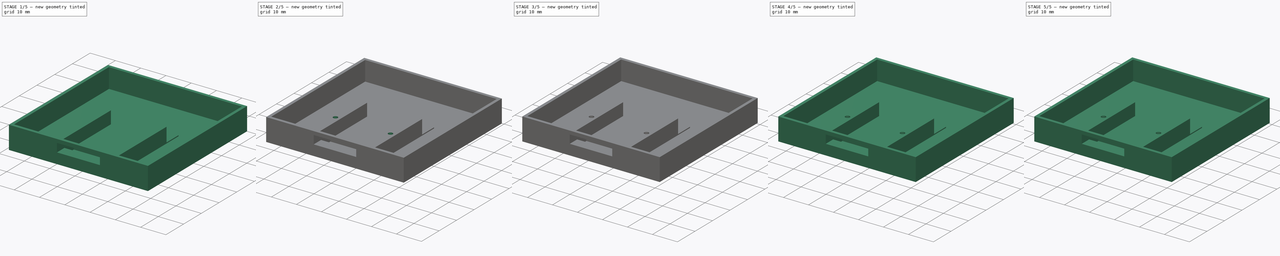
[diagram: build sequence overview — one tinted view per stage of 5, left to right]
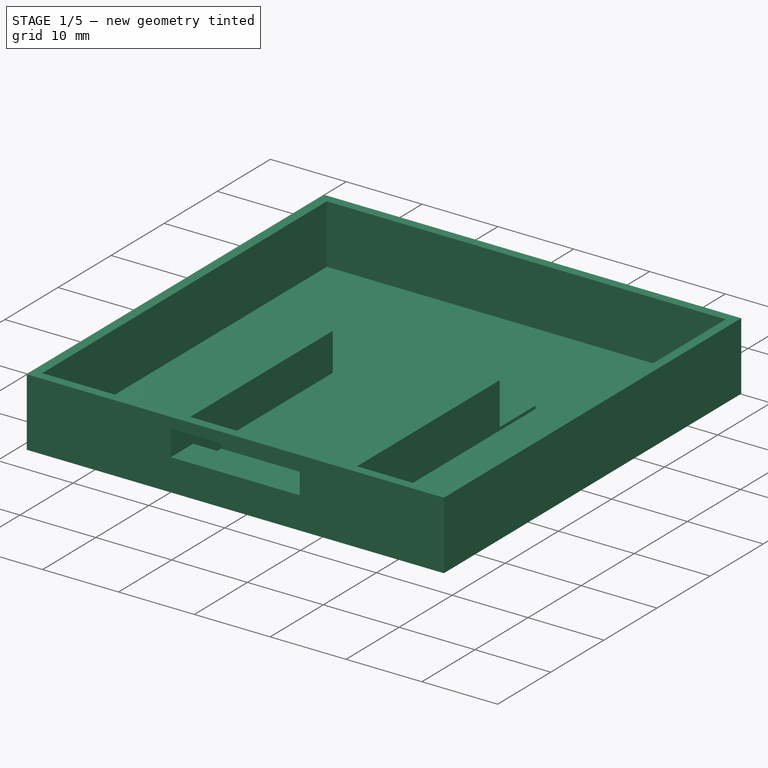
[diagram: stage 1 of 5 — iso view after this stage's code; geometry added in this stage tinted green]
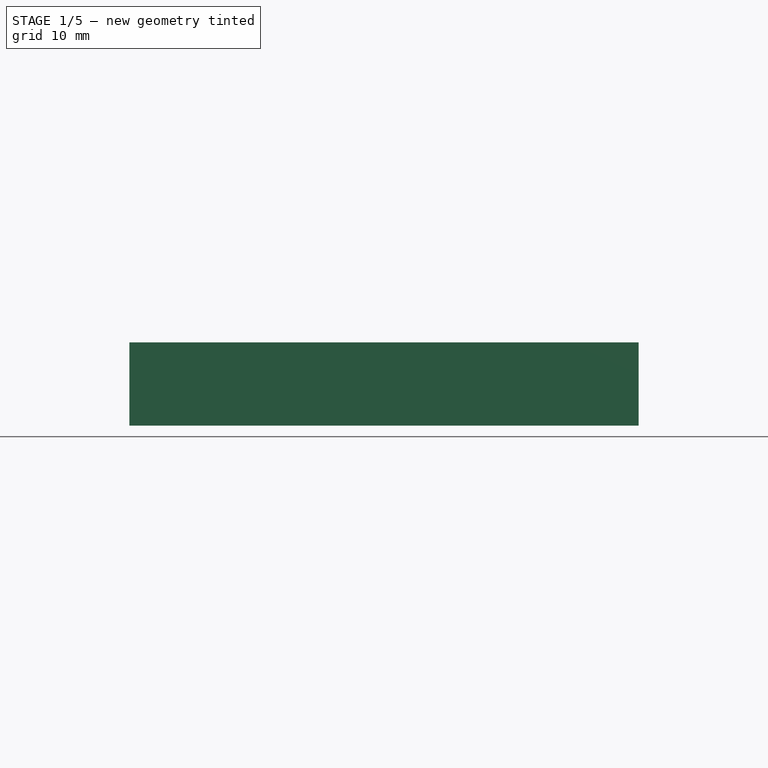
[diagram: stage 1 of 5 — front view after this stage's code; geometry added in this stage tinted green]
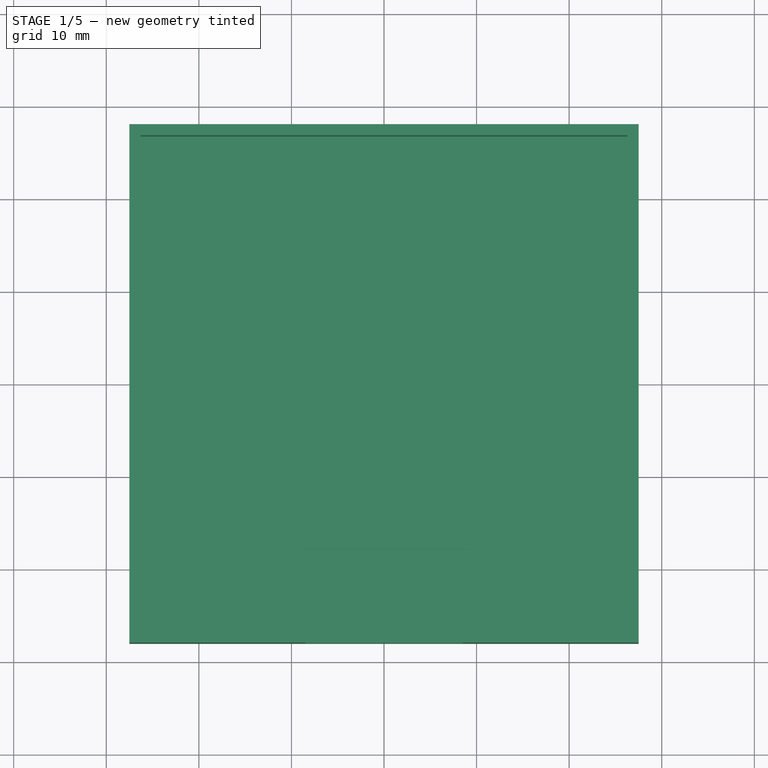
[diagram: stage 1 of 5 — top view after this stage's code; geometry added in this stage tinted green]
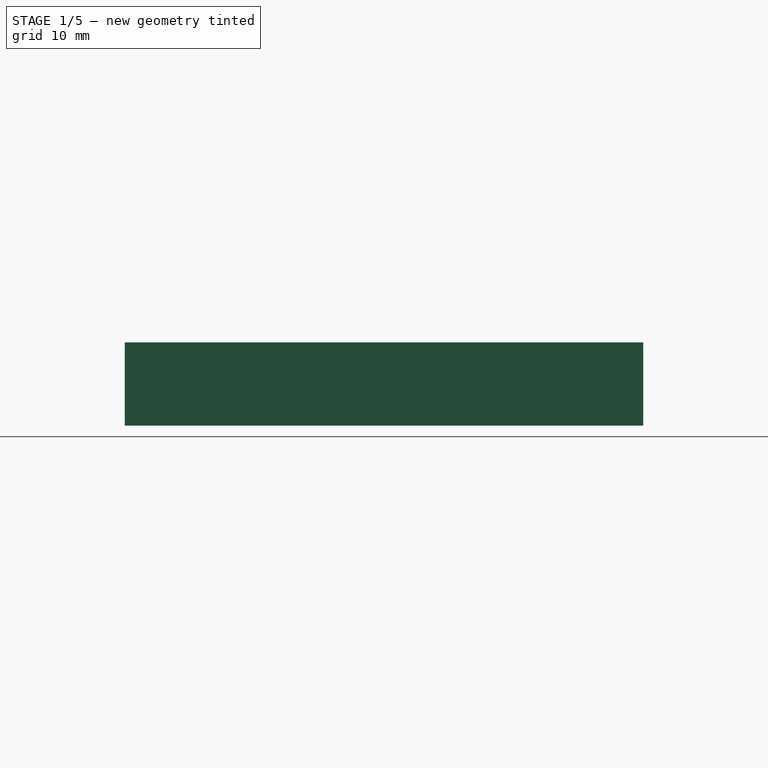
[diagram: stage 1 of 5 — right view after this stage's code; geometry added in this stage tinted green]
FCSTD DOCUMENT  (FreeCAD 0.20R29603 (Git))
Label: Bluetooth_Holder
License: All rights reserved
LicenseURL: http://en.wikipedia.org/wiki/All_rights_reserved
objects: Sketcher::SketchObject×16, PartDesign::Fillet×16, PartDesign::Pad×11, PartDesign::Body×6, Spreadsheet::Sheet×5, PartDesign::Plane×5, PartDesign::Pocket×5, PartDesign::LinearPattern×4
note: 95 computed .brp shape members not serialized (recipe doc carries the construction recipe); baked Part::Feature solids carry a one-line shape summary decoded from their .brp

FEATURE [PartDesign::Body] Body004  label="Tab4"
  Group = -> [Sketch010,Pad008,DatumPlane005,Sketch011,Pad009,LinearPattern003,Fillet012,Fillet013,Fillet014,Fillet015]
  Origin = -> Origin012
  Placement = pos=(-22.4,-32.5,7.4) rot=(0,0,-1;1.5708rad)
  Tip = -> Fillet015
FEATURE [Spreadsheet::Sheet] Spreadsheet004  label="Params004"
  cells = A1=tab_insertion; B1(tab_insertion)=1; A2=tab_width; B2(tab_width)=10; A3=tab_length; B3(tab_length)=9; A4=tab_height; B4(tab_height)=5.6; A5=tab_thickness; B5(tab_thickness)=1.6; A6=tab_rib_length; B6(tab_rib_length)==B3 - 4; A7=tab_rib_height; B7(tab_rib_height)==B4 - B8; A8=tab_rib_thickness; B8(tab_rib_thickness)=1.6; A9=tab_hole_x; B9(tab_hole_x)==B3 / 2; A10=tab_hole_y; B10(tab_hole_y)=0; A11=tab_hole_diameter; B11(tab_hole_diameter)=2.5; A12=tab_rib_insert; B12(tab_rib_insert)==2 * B1; A13=tab_ribs_gap; B13(tab_ribs_gap)==B2 - B8
FEATURE [PartDesign::Pad] Pad  label="Corpo"
  Direction = (0,0,1)
  Length = 9
  Length2 = 10
  Profile = -> Sketch
  ReferenceAxis = -> Sketch [N_Axis]
  Type = 0
  expr: Length = <<Params>>.box_height
FEATURE [Sketcher::SketchObject] Sketch012
  FullyConstrained = true
  MapMode = 5
  Placement = pos=(0,0,9) rot=(0,0,1;0rad)
  Support = -> [Pad]
  expr: Constraints[8] = <<Params>>.box_length_internal
  expr: Constraints[9] = <<Params>>.box_width_internal
  sketch-geometry (4):
    g0: LineSegment StartX=-26.3 StartY=26.8 StartZ=0 EndX=-26.3 EndY=-26.8 EndZ=0
    g1: LineSegment StartX=-26.3 StartY=-26.8 StartZ=0 EndX=26.3 EndY=-26.8 EndZ=0
    g2: LineSegment StartX=26.3 StartY=-26.8 StartZ=0 EndX=26.3 EndY=26.8 EndZ=0
    g3: LineSegment StartX=26.3 StartY=26.8 StartZ=0 EndX=-26.3 EndY=26.8 EndZ=0
  constraints (10):
    c: Coincident(g1,g0)
    c: Horizontal(g1)
    c: Coincident(g2,g1)
    c: Vertical(g2)
    c: Coincident(g3,g2)
    c: Coincident(g3,g0)
    c: Symmetric(g0,g2,g-2)
    c: Symmetric(g0,g0,g-1)
    c: DistanceX(g0,g2) = 52.6
    c: DistanceY(g0,g0) = 53.6
FEATURE [PartDesign::Pocket] Pocket
  BaseFeature = -> Pad
  Direction = (0,0,-1)
  Length = 7.8
  Length2 = 5
  Profile = -> Sketch012
  ReferenceAxis = -> Sketch012 [N_Axis]
  Type = 0
  expr: Length = <<Params>>.box_depth
FEATURE [Sketcher::SketchObject] Sketch013
  ExternalGeometry = -> [Pocket]
  FullyConstrained = true
  MapMode = 5
  Placement = pos=(0,0,1.2) rot=(0,0,1;0rad)
  Support = -> [Pocket]
  sketch-geometry (4):
    g0: LineSegment StartX=-13 StartY=3.2 StartZ=0 EndX=13 EndY=3.2 EndZ=0
    g1: LineSegment StartX=13 StartY=3.2 StartZ=0 EndX=13 EndY=-26.8 EndZ=0
    g2: LineSegment StartX=13 StartY=-26.8 StartZ=0 EndX=-13 EndY=-26.8 EndZ=0
    g3: LineSegment StartX=-13 StartY=-26.8 StartZ=0 EndX=-13 EndY=3.2 EndZ=0
  constraints (11):
    c: Coincident(g0,g1)
    c: Coincident(g1,g2)
    c: Coincident(g2,g3)
    c: Coincident(g3,g0)
    c: Horizontal(g2)
    c: Vertical(g1)
    c: Vertical(g3)
    c: DistanceX(g2,g1) = 26
    c: DistanceY(g2,g0) = 30
    c: DistanceY(g1,g-3) = 0
    c: Symmetric(g0,g0,g-2)
FEATURE [PartDesign::Pad] Pad010
  BaseFeature = -> Pocket
  Direction = (0,0,1)
  Length = 6
  Length2 = 10
  Profile = -> Sketch013
  ReferenceAxis = -> Sketch013 [N_Axis]
  Type = 0
FEATURE [Sketcher::SketchObject] Sketch014
  ExternalGeometry = -> [Pad010]
  FullyConstrained = true
  MapMode = 5
  Placement = pos=(0,0,7.2) rot=(0,0,1;0rad)
  Support = -> [Pad010]
  sketch-geometry (4):
    g0: LineSegment StartX=-9 StartY=-17.8 StartZ=0 EndX=9 EndY=-17.8 EndZ=0
    g1: LineSegment StartX=9 StartY=-17.8 StartZ=0 EndX=9 EndY=-23.8 EndZ=0
    g2: LineSegment StartX=9 StartY=-23.8 StartZ=0 EndX=-9 EndY=-23.8 EndZ=0
    g3: LineSegment StartX=-9 StartY=-23.8 StartZ=0 EndX=-9 EndY=-17.8 EndZ=0
  constraints (11):
    c: Coincident(g0,g1)
    c: Coincident(g1,g2)
    c: Coincident(g2,g3)
    c: Coincident(g3,g0)
    c: Horizontal(g2)
    c: Vertical(g1)
    c: Vertical(g3)
    c: Symmetric(g0,g0,g-2)
    c: DistanceY(g-3,g1) = 3
    c: DistanceX(g0,g0) = 18
    c: DistanceY(g1,g0) = 6
FEATURE [PartDesign::Pocket] Pocket001
  BaseFeature = -> Pad010
  Direction = (0,0,-1)
  Length = 6
  Length2 = 5
  Profile = -> Sketch014
  ReferenceAxis = -> Sketch014 [N_Axis]
  Type = 0
FEATURE [Sketcher::SketchObject] Sketch015
  ExternalGeometry = -> [Pocket001]
  FullyConstrained = true
  MapMode = 5
  Placement = pos=(0,0,7.2) rot=(0,0,1;0rad)
  Support = -> [Pocket001]
  sketch-geometry (4):
    g0: LineSegment StartX=-9 StartY=-17.8 StartZ=0 EndX=9 EndY=-17.8 EndZ=0
    g1: LineSegment StartX=9 StartY=-17.8 StartZ=0 EndX=9 EndY=4.2 EndZ=0
    g2: LineSegment StartX=9 StartY=4.2 StartZ=0 EndX=-9 EndY=4.2 EndZ=0
    g3: LineSegment StartX=-9 StartY=4.2 StartZ=0 EndX=-9 EndY=-17.8 EndZ=0
  constraints (10):
    c: Coincident(g0,g1)
    c: Coincident(g1,g2)
    c: Coincident(g2,g3)
    c: Coincident(g3,g0)
    c: Horizontal(g2)
    c: Vertical(g1)
    c: Vertical(g3)
    c: Coincident(g0,g-3)
    c: Coincident(g0,g-3)
    c: DistanceY(g0,g2) = 22
FEATURE [PartDesign::Pocket] Pocket002
  BaseFeature = -> Pocket001
  Direction = (0,0,-1)
  Length = 5
  Length2 = 5
  Profile = -> Sketch015
  ReferenceAxis = -> Sketch015 [N_Axis]
  Type = 0
FEATURE [Sketcher::SketchObject] Sketch016
  FullyConstrained = true
  MapMode = 5
  Placement = pos=(0,-28,0) rot=(1,0,0;1.5708rad)
  Support = -> [Pocket002]
  sketch-geometry (4):
    g0: LineSegment StartX=-8.5 StartY=7.6 StartZ=0 EndX=8.5 EndY=7.6 EndZ=0
    g1: LineSegment StartX=8.5 StartY=7.6 StartZ=0 EndX=8.5 EndY=4.2 EndZ=0
    g2: LineSegment StartX=8.5 StartY=4.2 StartZ=0 EndX=-8.5 EndY=4.2 EndZ=0
    g3: LineSegment StartX=-8.5 StartY=4.2 StartZ=0 EndX=-8.5 EndY=7.6 EndZ=0
  constraints (11):
    c: Coincident(g0,g1)
    c: Coincident(g1,g2)
    c: Coincident(g2,g3)
    c: Coincident(g3,g0)
    c: Horizontal(g2)
    c: Vertical(g1)
    c: Vertical(g3)
    c: Symmetric(g0,g0,g-2)
    c: DistanceY(g-1,g2) = 4.2
    c: DistanceY(g2,g0) = 3.4
    c: DistanceX(g0,g0) = 17
FEATURE [PartDesign::Pocket] Pocket003
  BaseFeature = -> Pocket002
  Direction = (0,1,-2e-16)
  Length = 5
  Length2 = 5
  Profile = -> Sketch016
  ReferenceAxis = -> Sketch016 [N_Axis]
  Type = 0
FEATURE [PartDesign::Body] Body
  Group = -> [Sketch,Pad,Sketch012,Pocket,Sketch013,Pad010,Sketch014,Pocket001,Sketch015,Pocket002,Sketch016,Pocket003,DatumPlane,Sketch017,Pocket004]
  Origin = -> Origin
  Tip = -> Pocket004
FEATURE [Sketcher::SketchObject] Sketch018
  FullyConstrained = true
  MapMode = 5
  Support = -> [XY_Plane013]
  sketch-geometry (6):
    g0: LineSegment StartX=-13 StartY=10 StartZ=0 EndX=13 EndY=10 EndZ=0
    g1: LineSegment StartX=13 StartY=10 StartZ=0 EndX=13 EndY=-10 EndZ=0
    g2: LineSegment StartX=13 StartY=-10 StartZ=0 EndX=-13 EndY=-10 EndZ=0
    g3: LineSegment StartX=-13 StartY=-10 StartZ=0 EndX=-13 EndY=10 EndZ=0
    g4: Circle CenterX=-11 CenterY=-2 CenterZ=0 NormalX=0 NormalY=0 NormalZ=1 AngleXU=0 Radius=1.1
    g5: Circle CenterX=11 CenterY=-2 CenterZ=0 NormalX=0 NormalY=0 NormalZ=1 AngleXU=0 Radius=1.1
  constraints (15):
    c: Coincident(g0,g1)
    c: Coincident(g1,g2)
    c: Coincident(g2,g3)
    c: Coincident(g3,g0)
    c: Horizontal(g2)
    c: Vertical(g1)
    c: Symmetric(g0,g0,g-2)
    c: Symmetric(g0,g2,g-1)
    c: DistanceX(g0,g0) = 26
    c: DistanceY(g2,g0) = 20
    c: Symmetric(g4,g5,g-2)
    c: DistanceX(g4,g5) = 22
    c: Equal(g5,g4)
    c: Diameter(g5) = 2.2
    c: DistanceY(g4,g-1) = 2
FEATURE [PartDesign::Pad] Pad011
  Direction = (0,0,1)
  Length = 1.6
  Length2 = 10
  Profile = -> Sketch018
  ReferenceAxis = -> Sketch018 [N_Axis]
  Type = 0
FEATURE [PartDesign::Body] Body005  label="Tampa"
  Group = -> [Sketch018,Pad011]
  Origin = -> Origin013
  Placement = pos=(0,-10,9) rot=(0,0,1;0rad)
  Tip = -> Pad011
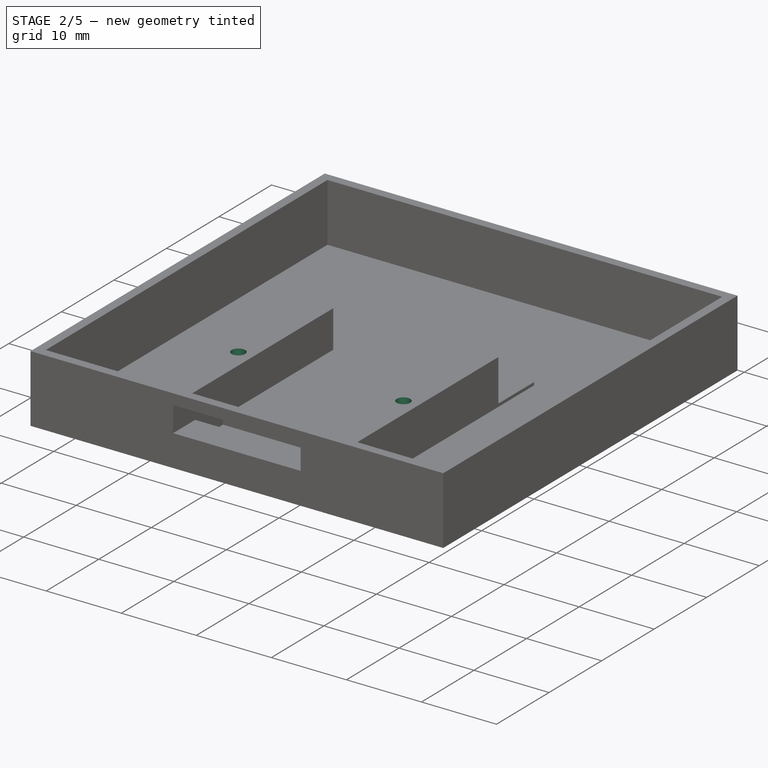
[diagram: stage 2 of 5 — iso view after this stage's code; geometry added in this stage tinted green]
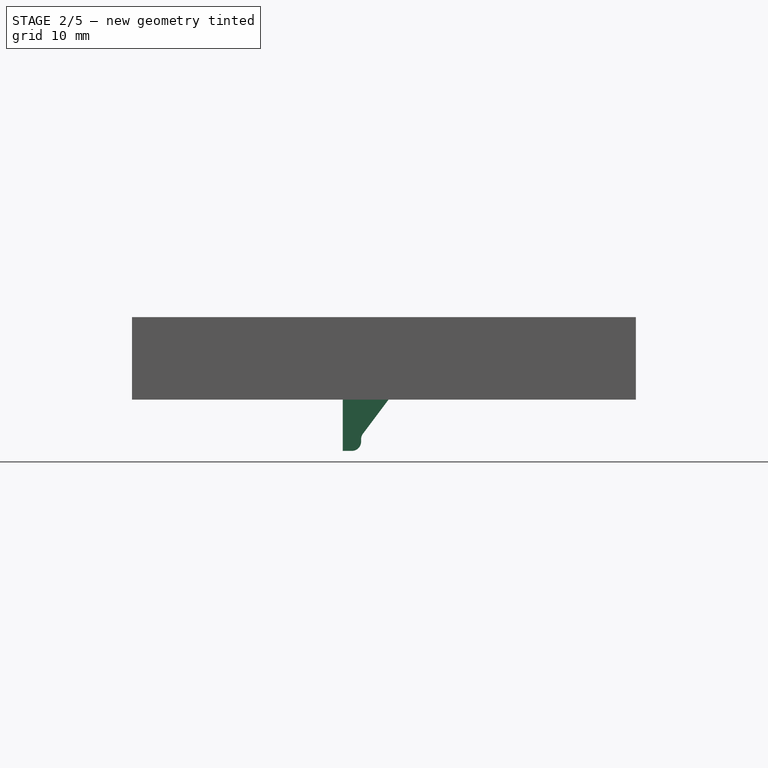
[diagram: stage 2 of 5 — front view after this stage's code; geometry added in this stage tinted green]
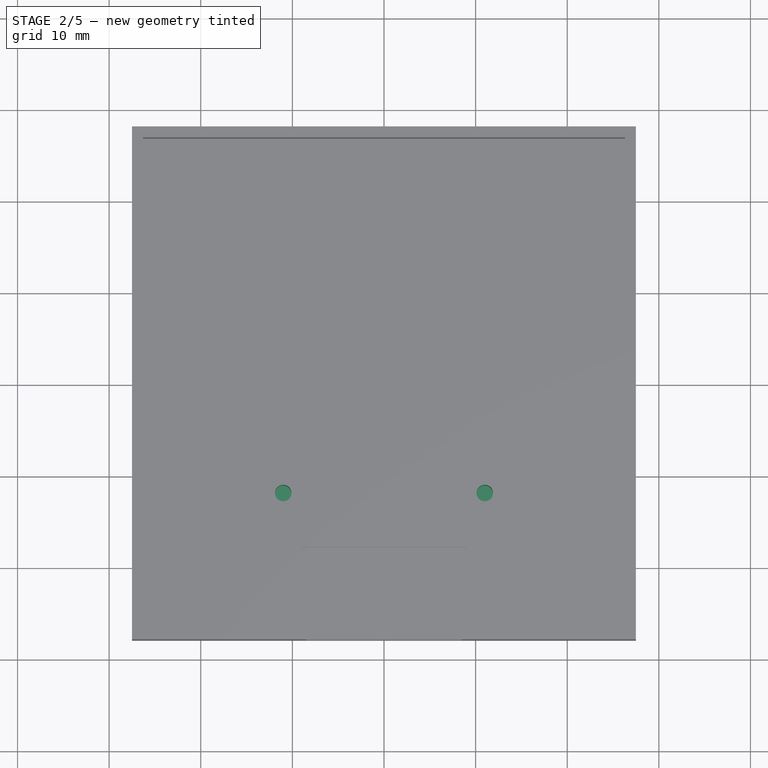
[diagram: stage 2 of 5 — top view after this stage's code; geometry added in this stage tinted green]
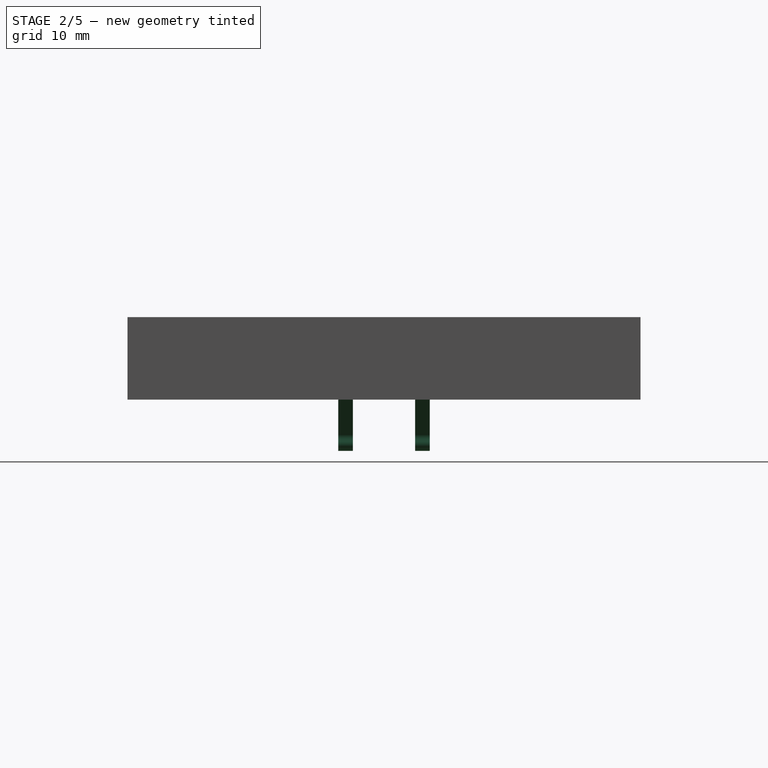
[diagram: stage 2 of 5 — right view after this stage's code; geometry added in this stage tinted green]
FEATURE [PartDesign::Body] Body003  label="Tab3"
  Group = -> [Sketch008,Pad006,DatumPlane004,Sketch009,Pad007,LinearPattern002,Fillet008,Fillet009,Fillet010,Fillet011]
  Origin = -> Origin011
  Placement = pos=(-22.4,32.5,7.4) rot=(0,0,1;1.5708rad)
  Tip = -> Fillet011
FEATURE [Spreadsheet::Sheet] Spreadsheet003  label="Params003"
  cells = A1=tab_insertion; B1(tab_insertion)=1; A2=tab_width; B2(tab_width)=10; A3=tab_length; B3(tab_length)=9; A4=tab_height; B4(tab_height)=6; A5=tab_thickness; B5(tab_thickness)=1.6; A6=tab_rib_length; B6(tab_rib_length)==B3 - 4; A7=tab_rib_height; B7(tab_rib_height)==B4 - B8; A8=tab_rib_thickness; B8(tab_rib_thickness)=1.6; A9=tab_hole_x; B9(tab_hole_x)==B3 / 2; A10=tab_hole_y; B10(tab_hole_y)=0; A11=tab_hole_diameter; B11(tab_hole_diameter)=2.5; A12=tab_rib_insert; B12(tab_rib_insert)==2 * B1; A13=tab_ribs_gap; B13(tab_ribs_gap)==B2 - B8
FEATURE [Sketcher::SketchObject] Sketch010
  FullyConstrained = true
  MapMode = 5
  Support = -> [XY_Plane012]
  expr: Constraints[13] = <<Params004>>.tab_length
  expr: Constraints[14] = <<Params004>>.tab_width
  expr: Constraints[19] = <<Params004>>.tab_hole_diameter
  expr: Constraints[20] = <<Params004>>.tab_hole_x
  sketch-geometry (8):
    g0: LineSegment StartX=-4.5 StartY=5 StartZ=0 EndX=4.5 EndY=5 EndZ=0
    g1: LineSegment StartX=4.5 StartY=5 StartZ=0 EndX=4.5 EndY=1.25 EndZ=0
    g2: LineSegment StartX=4.5 StartY=-5 StartZ=0 EndX=-4.5 EndY=-5 EndZ=0
    g3: LineSegment StartX=-4.5 StartY=-5 StartZ=0 EndX=-4.5 EndY=5 EndZ=0
    g4: ArcOfCircle CenterX=-3e-16 CenterY=0 CenterZ=0 NormalX=0 NormalY=0 NormalZ=1 AngleXU=0 Radius=1.25 StartAngle=1.5708 EndAngle=4.71239
    g5: LineSegment StartX=-5e-16 StartY=1.25 StartZ=0 EndX=4.5 EndY=1.25 EndZ=0
    g6: LineSegment StartX=4.5 StartY=-1.25 StartZ=0 EndX=-9e-16 EndY=-1.25 EndZ=0
    g7: LineSegment StartX=4.5 StartY=-1.25 StartZ=0 EndX=4.5 EndY=-5 EndZ=0
  constraints (21):
    c: Coincident(g0,g1)
    c: Coincident(g7,g2)
    c: Coincident(g2,g3)
    c: Coincident(g3,g0)
    c: Horizontal(g2)
    c: Vertical(g1)
    c: Symmetric(g0,g0,g-2)
    c: Symmetric(g0,g2,g-1)
    c: PointOnObject(g4,g-1)
    c: Horizontal(g5)
    c: Horizontal(g6)
    c: Coincident(g1,g5)
    c: Coincident(g7,g6)
    c: DistanceX(g0,g0) = 9
    c: DistanceY(g2,g0) = 10
    c: Tangent(g4,g5) = 1.5708
    c: Tangent(g6,g4) = 1.5708
    c: Vertical(g7)
    c: Vertical(g6,g1)
    c: Diameter(g4) = 2.5
    c: DistanceX(g0,g4) = 4.5
FEATURE [PartDesign::Pad] Pad008
  Direction = (0,0,1)
  Length = 1.6
  Length2 = 10
  Profile = -> Sketch010
  ReferenceAxis = -> Sketch010 [N_Axis]
  Type = 0
  expr: Length = <<Params004>>.tab_thickness
FEATURE [PartDesign::Plane] DatumPlane005  label="PlaneRib003"
  Length = 60
  MapMode = 5
  Placement = pos=(0,-5,0) rot=(1,0,0;1.5708rad)
  ResizeMode = 0
  Support = -> [Pad008]
  Width = 60
FEATURE [Sketcher::SketchObject] Sketch011
  ExternalGeometry = -> [Pad008]
  FullyConstrained = true
  MapMode = 5
  Placement = pos=(0,-5,0) rot=(1,0,0;1.5708rad)
  Support = -> [DatumPlane005]
  expr: Constraints[11] = <<Params004>>.tab_rib_height
  expr: Constraints[12] = <<Params004>>.tab_rib_length
  expr: Constraints[13] = <<Params004>>.tab_rib_insert
  expr: Constraints[6] = <<Params004>>.tab_height
  sketch-geometry (5):
    g0: LineSegment StartX=-4.5 StartY=0 StartZ=0 EndX=-4.5 EndY=-5.6 EndZ=0
    g1: LineSegment StartX=-4.5 StartY=-5.6 StartZ=0 EndX=-2.5 EndY=-5.6 EndZ=0
    g2: LineSegment StartX=0.5 StartY=0 StartZ=0 EndX=-4.5 EndY=0 EndZ=0
    g3: LineSegment StartX=-2.5 StartY=-5.6 StartZ=0 EndX=-2.5 EndY=-4 EndZ=0
    g4: LineSegment StartX=-2.5 StartY=-4 StartZ=0 EndX=0.5 EndY=0 EndZ=0
  constraints (14):
    c: Coincident(g0,g-3)
    c: Vertical(g0)
    c: Coincident(g1,g0)
    c: PointOnObject(g2,g-1)
    c: Coincident(g2,g0)
    c: Horizontal(g1)
    c: DistanceY(g0,g0) = 5.6
    c: Coincident(g3,g1)
    c: Vertical(g3)
    c: Coincident(g4,g3)
    c: Coincident(g4,g2)
    c: DistanceY(g3,g-1) = 4
    c: DistanceX(g0,g2) = 5
    c: DistanceX(g0,g1) = 2
FEATURE [PartDesign::Pad] Pad009  label="TabRib008"
  BaseFeature = -> Pad008
  Direction = (0,-1,2e-16)
  Length = 1.6
  Length2 = 10
  Profile = -> Sketch011
  ReferenceAxis = -> Sketch011 [N_Axis]
  Reversed = true
  Type = 0
  expr: Length = <<Params004>>.tab_rib_thickness
FEATURE [PartDesign::LinearPattern] LinearPattern003  label="TabRib007"
  BaseFeature = -> Pad009
  Direction = -> Y_Axis012
  Length = 8.4
  Occurrences = 2
  Originals = -> [Pad009]
  expr: Length = <<Params004>>.tab_ribs_gap
FEATURE [PartDesign::Fillet] Fillet012
  Base = -> LinearPattern003 [Edge51,Edge52]
  BaseFeature = -> LinearPattern003
  Radius = 1
  SupportTransform = false
  UseAllEdges = false
FEATURE [PartDesign::Fillet] Fillet013
  Base = -> Fillet012 [Edge14,Edge52]
  BaseFeature = -> Fillet012
  Radius = 1
  SupportTransform = false
  UseAllEdges = false
FEATURE [PartDesign::Fillet] Fillet014
  Base = -> Fillet013 [Edge19,Edge53]
  BaseFeature = -> Fillet013
  Radius = 1
  SupportTransform = false
  UseAllEdges = false
FEATURE [PartDesign::Plane] DatumPlane
  Length = 60
  MapMode = 5
  Placement = pos=(0,0,7.2) rot=(0,0,1;0rad)
  ResizeMode = 0
  Support = -> [Pocket003]
  Width = 60
FEATURE [Sketcher::SketchObject] Sketch017
  FullyConstrained = true
  MapMode = 5
  Placement = pos=(0,0,7.2) rot=(0,0,1;0rad)
  Support = -> [DatumPlane]
  sketch-geometry (2):
    g0: Circle CenterX=-11 CenterY=-12 CenterZ=0 NormalX=0 NormalY=0 NormalZ=1 AngleXU=0 Radius=0.9
    g1: Circle CenterX=11 CenterY=-12 CenterZ=0 NormalX=0 NormalY=0 NormalZ=1 AngleXU=0 Radius=0.9
  constraints (5):
    c: Equal(g0,g1)
    c: Symmetric(g0,g1,g-2)
    c: Diameter(g1) = 1.8
    c: DistanceX(g0,g1) = 22
    c: DistanceY(g1,g-1) = 12
FEATURE [PartDesign::Pocket] Pocket004
  BaseFeature = -> Pocket003
  Direction = (0,0,-1)
  Length = 5
  Length2 = 5
  Profile = -> Sketch017
  ReferenceAxis = -> Sketch017 [N_Axis]
  Type = 0
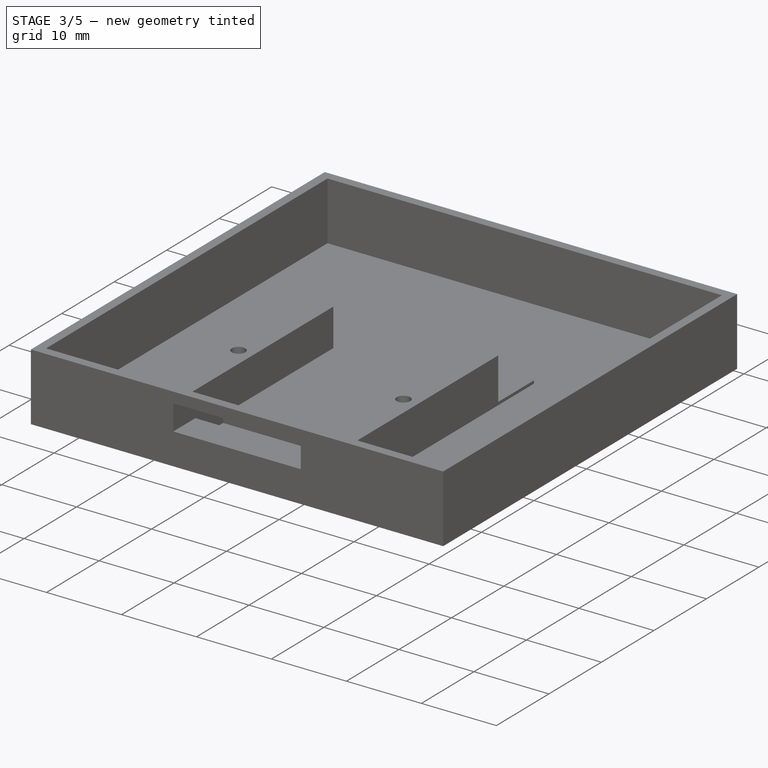
[diagram: stage 3 of 5 — iso view after this stage's code; geometry added in this stage tinted green]
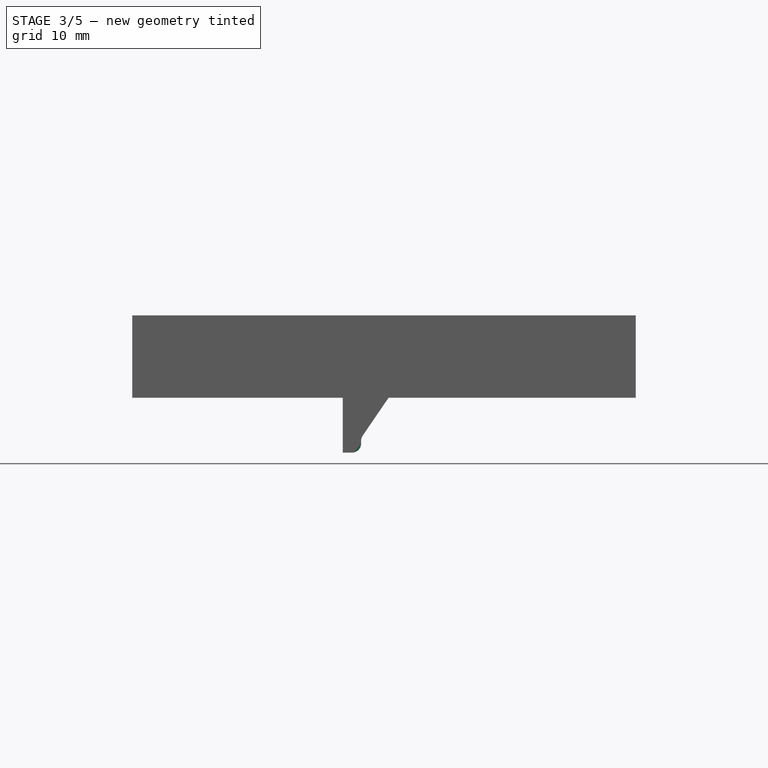
[diagram: stage 3 of 5 — front view after this stage's code; geometry added in this stage tinted green]
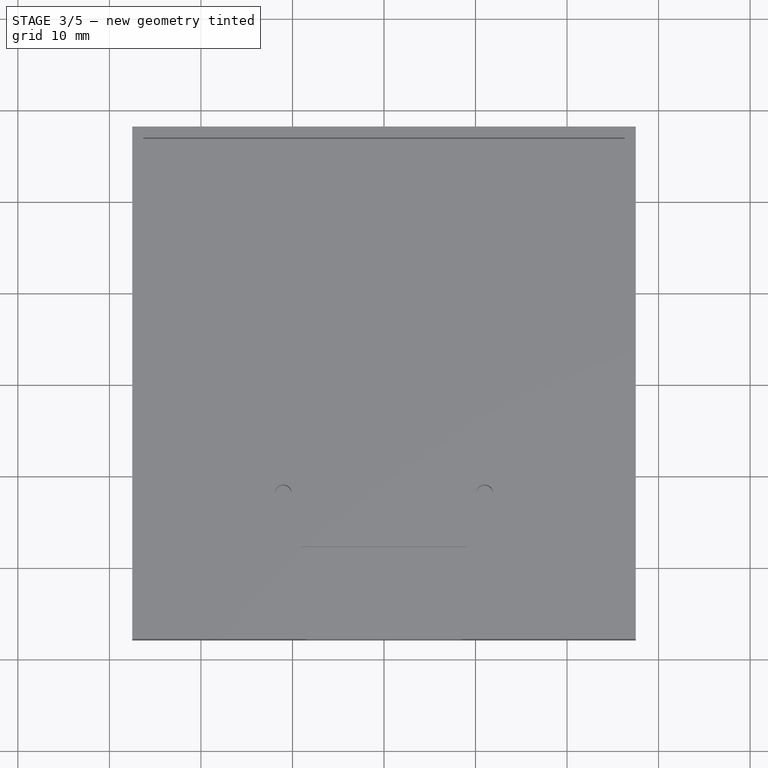
[diagram: stage 3 of 5 — top view after this stage's code; geometry added in this stage tinted green]
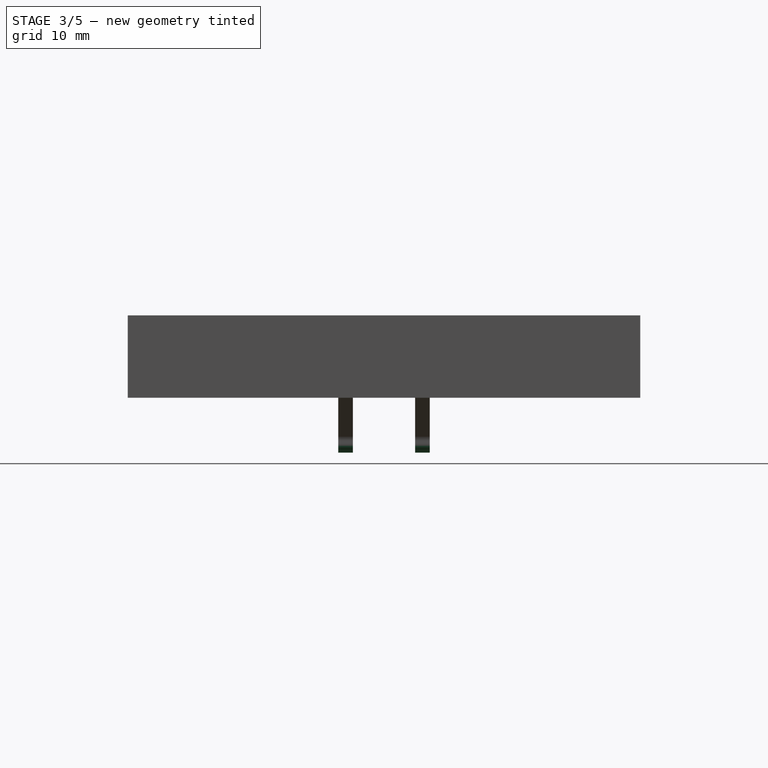
[diagram: stage 3 of 5 — right view after this stage's code; geometry added in this stage tinted green]
FEATURE [PartDesign::Body] Body002  label="Tab2"
  Group = -> [Sketch006,Pad004,DatumPlane003,Sketch007,Pad005,LinearPattern001,Fillet004,Fillet005,Fillet006,Fillet007]
  Origin = -> Origin010
  Placement = pos=(22.4,32.5,7.4) rot=(0,0,1;1.5708rad)
  Tip = -> Fillet007
FEATURE [Spreadsheet::Sheet] Spreadsheet002  label="Params002"
  cells = A1=tab_insertion; B1(tab_insertion)=1; A2=tab_width; B2(tab_width)=10; A3=tab_length; B3(tab_length)=9; A4=tab_height; B4(tab_height)=6; A5=tab_thickness; B5(tab_thickness)=1.6; A6=tab_rib_length; B6(tab_rib_length)==B3 - 4; A7=tab_rib_height; B7(tab_rib_height)==B4 - B8; A8=tab_rib_thickness; B8(tab_rib_thickness)=1.6; A9=tab_hole_x; B9(tab_hole_x)==B3 / 2; A10=tab_hole_y; B10(tab_hole_y)=0; A11=tab_hole_diameter; B11(tab_hole_diameter)=2.4; A12=tab_rib_insert; B12(tab_rib_insert)==2 * B1; A13=tab_ribs_gap; B13(tab_ribs_gap)==B2 - B8
FEATURE [Sketcher::SketchObject] Sketch008
  FullyConstrained = true
  MapMode = 5
  Support = -> [XY_Plane011]
  expr: Constraints[13] = <<Params003>>.tab_length
  expr: Constraints[14] = <<Params003>>.tab_width
  expr: Constraints[19] = <<Params003>>.tab_hole_diameter
  expr: Constraints[20] = <<Params003>>.tab_hole_x
  sketch-geometry (8):
    g0: LineSegment StartX=-4.5 StartY=5 StartZ=0 EndX=4.5 EndY=5 EndZ=0
    g1: LineSegment StartX=4.5 StartY=5 StartZ=0 EndX=4.5 EndY=1.25 EndZ=0
    g2: LineSegment StartX=4.5 StartY=-5 StartZ=0 EndX=-4.5 EndY=-5 EndZ=0
    g3: LineSegment StartX=-4.5 StartY=-5 StartZ=0 EndX=-4.5 EndY=5 EndZ=0
    g4: ArcOfCircle CenterX=-1e-16 CenterY=0 CenterZ=0 NormalX=0 NormalY=0 NormalZ=1 AngleXU=0 Radius=1.25 StartAngle=1.5708 EndAngle=4.71239
    g5: LineSegment StartX=-3e-16 StartY=1.25 StartZ=0 EndX=4.5 EndY=1.25 EndZ=0
    g6: LineSegment StartX=4.5 StartY=-1.25 StartZ=0 EndX=0 EndY=-1.25 EndZ=0
    g7: LineSegment StartX=4.5 StartY=-1.25 StartZ=0 EndX=4.5 EndY=-5 EndZ=0
  constraints (21):
    c: Coincident(g0,g1)
    c: Coincident(g7,g2)
    c: Coincident(g2,g3)
    c: Coincident(g3,g0)
    c: Horizontal(g2)
    c: Vertical(g1)
    c: Symmetric(g0,g0,g-2)
    c: Symmetric(g0,g2,g-1)
    c: PointOnObject(g4,g-1)
    c: Horizontal(g5)
    c: Horizontal(g6)
    c: Coincident(g1,g5)
    c: Coincident(g7,g6)
    c: DistanceX(g0,g0) = 9
    c: DistanceY(g2,g0) = 10
    c: Tangent(g4,g5) = 1.5708
    c: Tangent(g6,g4) = 1.5708
    c: Vertical(g7)
    c: Vertical(g6,g1)
    c: Diameter(g4) = 2.5
    c: DistanceX(g0,g4) = 4.5
FEATURE [PartDesign::Pad] Pad006
  Direction = (0,0,1)
  Length = 1.6
  Length2 = 10
  Profile = -> Sketch008
  ReferenceAxis = -> Sketch008 [N_Axis]
  Type = 0
  expr: Length = <<Params003>>.tab_thickness
FEATURE [PartDesign::Plane] DatumPlane004  label="PlaneRib002"
  Length = 60
  MapMode = 5
  Placement = pos=(0,-5,0) rot=(1,0,0;1.5708rad)
  ResizeMode = 0
  Support = -> [Pad006]
  Width = 60
FEATURE [Sketcher::SketchObject] Sketch009
  ExternalGeometry = -> [Pad006]
  FullyConstrained = true
  MapMode = 5
  Placement = pos=(0,-5,0) rot=(1,0,0;1.5708rad)
  Support = -> [DatumPlane004]
  expr: Constraints[11] = <<Params003>>.tab_rib_height
  expr: Constraints[12] = <<Params003>>.tab_rib_length
  expr: Constraints[13] = <<Params003>>.tab_rib_insert
  expr: Constraints[6] = <<Params003>>.tab_height
  sketch-geometry (5):
    g0: LineSegment StartX=-4.5 StartY=0 StartZ=0 EndX=-4.5 EndY=-6 EndZ=0
    g1: LineSegment StartX=-4.5 StartY=-6 StartZ=0 EndX=-2.5 EndY=-6 EndZ=0
    g2: LineSegment StartX=0.5 StartY=0 StartZ=0 EndX=-4.5 EndY=0 EndZ=0
    g3: LineSegment StartX=-2.5 StartY=-6 StartZ=0 EndX=-2.5 EndY=-4.4 EndZ=0
    g4: LineSegment StartX=-2.5 StartY=-4.4 StartZ=0 EndX=0.5 EndY=0 EndZ=0
  constraints (14):
    c: Coincident(g0,g-3)
    c: Vertical(g0)
    c: Coincident(g1,g0)
    c: PointOnObject(g2,g-1)
    c: Coincident(g2,g0)
    c: Horizontal(g1)
    c: DistanceY(g0,g0) = 6
    c: Coincident(g3,g1)
    c: Vertical(g3)
    c: Coincident(g4,g3)
    c: Coincident(g4,g2)
    c: DistanceY(g3,g-1) = 4.4
    c: DistanceX(g0,g2) = 5
    c: DistanceX(g0,g1) = 2
FEATURE [PartDesign::Pad] Pad007  label="TabRib006"
  BaseFeature = -> Pad006
  Direction = (0,-1,2e-16)
  Length = 1.6
  Length2 = 10
  Profile = -> Sketch009
  ReferenceAxis = -> Sketch009 [N_Axis]
  Reversed = true
  Type = 0
  expr: Length = <<Params003>>.tab_rib_thickness
FEATURE [PartDesign::LinearPattern] LinearPattern002  label="TabRib005"
  BaseFeature = -> Pad007
  Direction = -> Y_Axis011
  Length = 8.4
  Occurrences = 2
  Originals = -> [Pad007]
  expr: Length = <<Params003>>.tab_ribs_gap
FEATURE [PartDesign::Fillet] Fillet008
  Base = -> LinearPattern002 [Edge51,Edge52]
  BaseFeature = -> LinearPattern002
  Radius = 1
  SupportTransform = false
  UseAllEdges = false
FEATURE [PartDesign::Fillet] Fillet009
  Base = -> Fillet008 [Edge14,Edge52]
  BaseFeature = -> Fillet008
  Radius = 1
  SupportTransform = false
  UseAllEdges = false
FEATURE [PartDesign::Fillet] Fillet010
  Base = -> Fillet009 [Edge19,Edge53]
  BaseFeature = -> Fillet009
  Radius = 1
  SupportTransform = false
  UseAllEdges = false
FEATURE [PartDesign::Fillet] Fillet011
  Base = -> Fillet010 [Edge38,Edge43]
  BaseFeature = -> Fillet010
  Radius = 1.5
  SupportTransform = false
  UseAllEdges = false
FEATURE [PartDesign::Fillet] Fillet015
  Base = -> Fillet014 [Edge38,Edge43]
  BaseFeature = -> Fillet014
  Radius = 1.5
  SupportTransform = false
  UseAllEdges = false
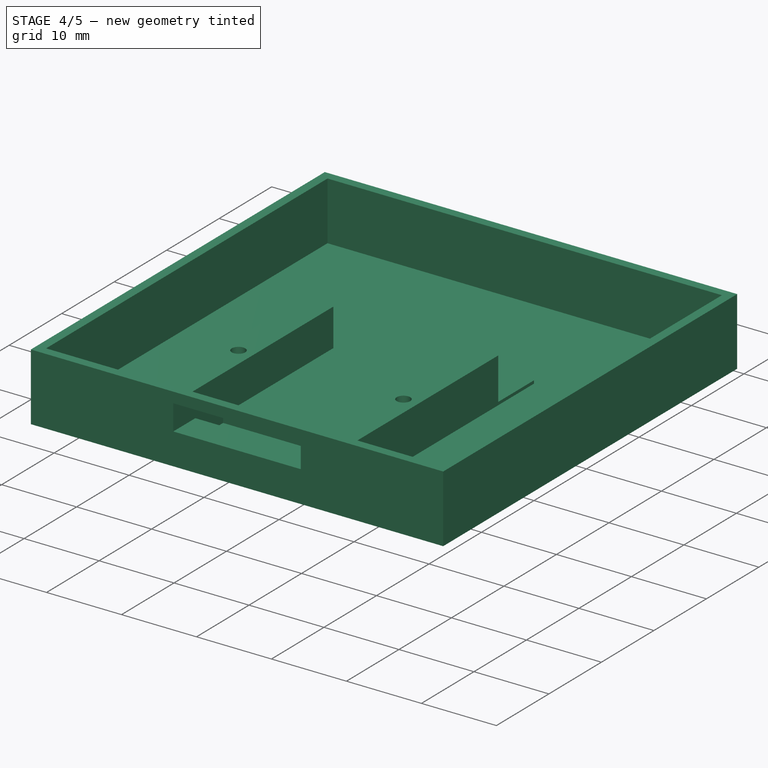
[diagram: stage 4 of 5 — iso view after this stage's code; geometry added in this stage tinted green]
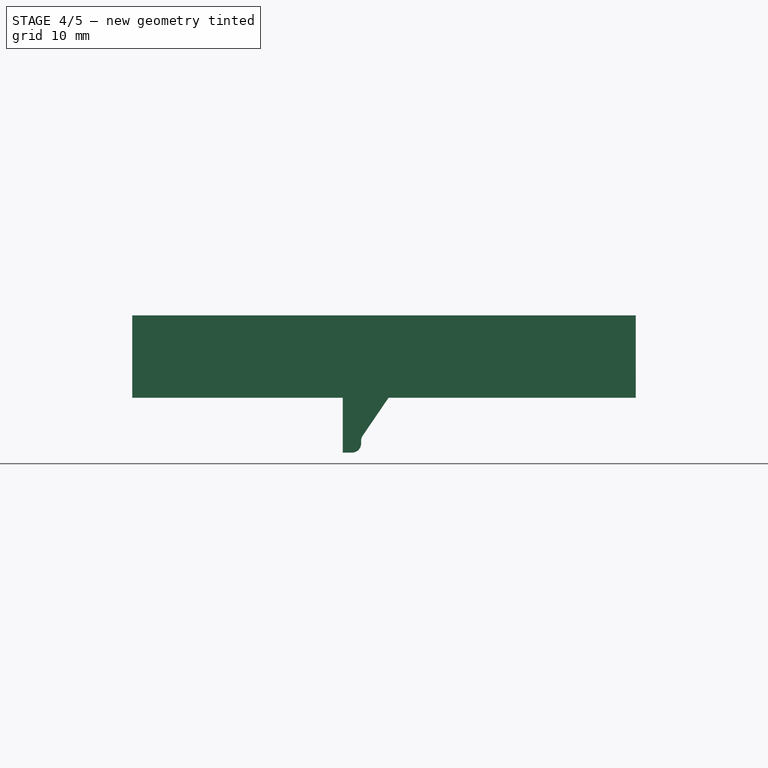
[diagram: stage 4 of 5 — front view after this stage's code; geometry added in this stage tinted green]
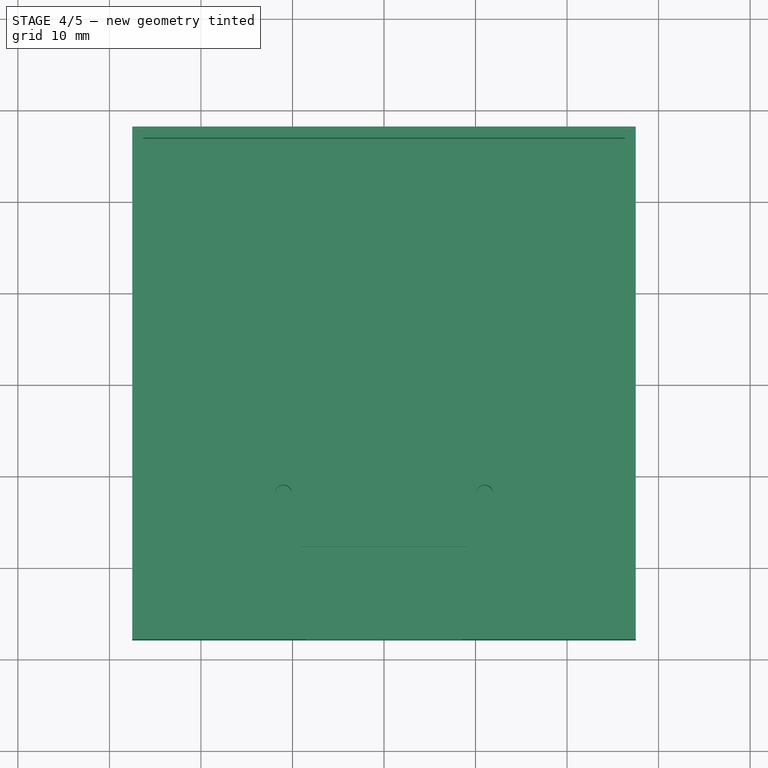
[diagram: stage 4 of 5 — top view after this stage's code; geometry added in this stage tinted green]
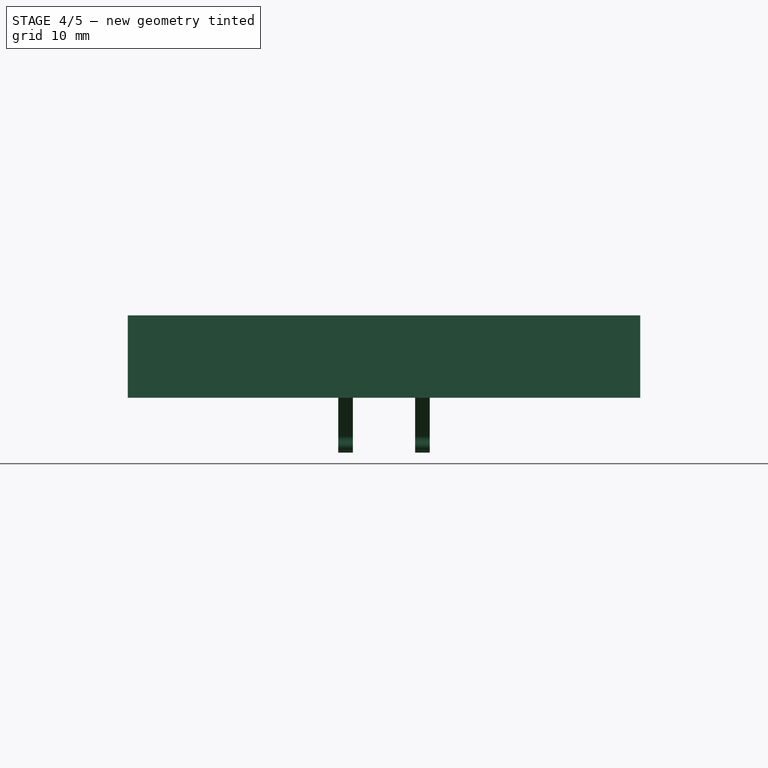
[diagram: stage 4 of 5 — right view after this stage's code; geometry added in this stage tinted green]
FEATURE [PartDesign::Body] Body001  label="Tab1"
  Group = -> [Sketch004,Pad002,DatumPlane002,Sketch005,Pad003,LinearPattern,Fillet,Fillet001,Fillet002,Fillet003]
  Origin = -> Origin009
  Placement = pos=(22.4,-32.5,7.4) rot=(0,0,-1;1.5708rad)
  Tip = -> Fillet003
FEATURE [Spreadsheet::Sheet] Spreadsheet001  label="Params001"
  cells = A1=tab_insertion; B1(tab_insertion)=1; A2=tab_width; B2(tab_width)=10; A3=tab_length; B3(tab_length)=9; A4=tab_height; B4(tab_height)=5.6; A5=tab_thickness; B5(tab_thickness)=1.6; A6=tab_rib_length; B6(tab_rib_length)==B3 - 4; A7=tab_rib_height; B7(tab_rib_height)==B4 - B8; A8=tab_rib_thickness; B8(tab_rib_thickness)=1.6; A9=tab_hole_x; B9(tab_hole_x)==B3 / 2; A10=tab_hole_y; B10(tab_hole_y)=0; A11=tab_hole_diameter; B11(tab_hole_diameter)=2.5; A12=tab_rib_insert; B12(tab_rib_insert)==2 * B1; A13=tab_ribs_gap; B13(tab_ribs_gap)==B2 - B8
FEATURE [Sketcher::SketchObject] Sketch006
  FullyConstrained = true
  MapMode = 5
  Support = -> [XY_Plane010]
  expr: Constraints[13] = <<Params002>>.tab_length
  expr: Constraints[14] = <<Params002>>.tab_width
  expr: Constraints[19] = <<Params002>>.tab_hole_diameter
  expr: Constraints[20] = <<Params002>>.tab_hole_x
  sketch-geometry (8):
    g0: LineSegment StartX=-4.5 StartY=5 StartZ=0 EndX=4.5 EndY=5 EndZ=0
    g1: LineSegment StartX=4.5 StartY=5 StartZ=0 EndX=4.5 EndY=1.2 EndZ=0
    g2: LineSegment StartX=4.5 StartY=-5 StartZ=0 EndX=-4.5 EndY=-5 EndZ=0
    g3: LineSegment StartX=-4.5 StartY=-5 StartZ=0 EndX=-4.5 EndY=5 EndZ=0
    g4: ArcOfCircle CenterX=-3e-16 CenterY=0 CenterZ=0 NormalX=0 NormalY=0 NormalZ=1 AngleXU=0 Radius=1.2 StartAngle=1.5708 EndAngle=4.71239
    g5: LineSegment StartX=-5e-16 StartY=1.2 StartZ=0 EndX=4.5 EndY=1.2 EndZ=0
    g6: LineSegment StartX=4.5 StartY=-1.2 StartZ=0 EndX=-9e-16 EndY=-1.2 EndZ=0
    g7: LineSegment StartX=4.5 StartY=-1.2 StartZ=0 EndX=4.5 EndY=-5 EndZ=0
  constraints (21):
    c: Coincident(g0,g1)
    c: Coincident(g7,g2)
    c: Coincident(g2,g3)
    c: Coincident(g3,g0)
    c: Horizontal(g2)
    c: Vertical(g1)
    c: Symmetric(g0,g0,g-2)
    c: Symmetric(g0,g2,g-1)
    c: PointOnObject(g4,g-1)
    c: Horizontal(g5)
    c: Horizontal(g6)
    c: Coincident(g1,g5)
    c: Coincident(g7,g6)
    c: DistanceX(g0,g0) = 9
    c: DistanceY(g2,g0) = 10
    c: Tangent(g4,g5) = 1.5708
    c: Tangent(g6,g4) = 1.5708
    c: Vertical(g7)
    c: Vertical(g6,g1)
    c: Diameter(g4) = 2.4
    c: DistanceX(g0,g4) = 4.5
FEATURE [PartDesign::Pad] Pad004
  Direction = (0,0,1)
  Length = 1.6
  Length2 = 10
  Profile = -> Sketch006
  ReferenceAxis = -> Sketch006 [N_Axis]
  Type = 0
  expr: Length = <<Params002>>.tab_thickness
FEATURE [PartDesign::Plane] DatumPlane003  label="PlaneRib001"
  Length = 60
  MapMode = 5
  Placement = pos=(0,-5,0) rot=(1,0,0;1.5708rad)
  ResizeMode = 0
  Support = -> [Pad004]
  Width = 60
FEATURE [Sketcher::SketchObject] Sketch007
  ExternalGeometry = -> [Pad004]
  FullyConstrained = true
  MapMode = 5
  Placement = pos=(0,-5,0) rot=(1,0,0;1.5708rad)
  Support = -> [DatumPlane003]
  expr: Constraints[11] = <<Params002>>.tab_rib_height
  expr: Constraints[12] = <<Params002>>.tab_rib_length
  expr: Constraints[13] = <<Params002>>.tab_rib_insert
  expr: Constraints[6] = <<Params002>>.tab_height
  sketch-geometry (5):
    g0: LineSegment StartX=-4.5 StartY=0 StartZ=0 EndX=-4.5 EndY=-6 EndZ=0
    g1: LineSegment StartX=-4.5 StartY=-6 StartZ=0 EndX=-2.5 EndY=-6 EndZ=0
    g2: LineSegment StartX=0.5 StartY=0 StartZ=0 EndX=-4.5 EndY=0 EndZ=0
    g3: LineSegment StartX=-2.5 StartY=-6 StartZ=0 EndX=-2.5 EndY=-4.4 EndZ=0
    g4: LineSegment StartX=-2.5 StartY=-4.4 StartZ=0 EndX=0.5 EndY=0 EndZ=0
  constraints (14):
    c: Coincident(g0,g-3)
    c: Vertical(g0)
    c: Coincident(g1,g0)
    c: PointOnObject(g2,g-1)
    c: Coincident(g2,g0)
    c: Horizontal(g1)
    c: DistanceY(g0,g0) = 6
    c: Coincident(g3,g1)
    c: Vertical(g3)
    c: Coincident(g4,g3)
    c: Coincident(g4,g2)
    c: DistanceY(g3,g-1) = 4.4
    c: DistanceX(g0,g2) = 5
    c: DistanceX(g0,g1) = 2
FEATURE [PartDesign::Pad] Pad005  label="TabRib004"
  BaseFeature = -> Pad004
  Direction = (0,-1,2e-16)
  Length = 1.6
  Length2 = 10
  Profile = -> Sketch007
  ReferenceAxis = -> Sketch007 [N_Axis]
  Reversed = true
  Type = 0
  expr: Length = <<Params002>>.tab_rib_thickness
FEATURE [PartDesign::LinearPattern] LinearPattern001  label="TabRib003"
  BaseFeature = -> Pad005
  Direction = -> Y_Axis010
  Length = 8.4
  Occurrences = 2
  Originals = -> [Pad005]
  expr: Length = <<Params002>>.tab_ribs_gap
FEATURE [PartDesign::Fillet] Fillet004
  Base = -> LinearPattern001 [Edge51,Edge52]
  BaseFeature = -> LinearPattern001
  Radius = 1
  SupportTransform = false
  UseAllEdges = false
FEATURE [PartDesign::Fillet] Fillet005
  Base = -> Fillet004 [Edge14,Edge52]
  BaseFeature = -> Fillet004
  Radius = 1
  SupportTransform = false
  UseAllEdges = false
FEATURE [PartDesign::Fillet] Fillet006
  Base = -> Fillet005 [Edge19,Edge53]
  BaseFeature = -> Fillet005
  Radius = 1
  SupportTransform = false
  UseAllEdges = false
FEATURE [PartDesign::Fillet] Fillet007
  Base = -> Fillet006 [Edge38,Edge43]
  BaseFeature = -> Fillet006
  Radius = 1.5
  SupportTransform = false
  UseAllEdges = false
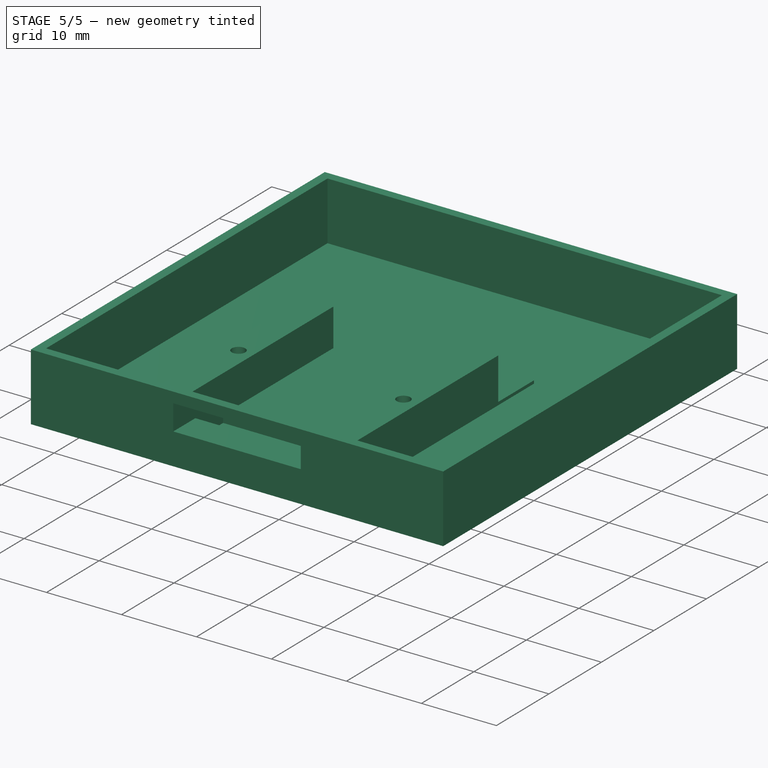
[diagram: stage 5 of 5 — iso view after this stage's code; geometry added in this stage tinted green]
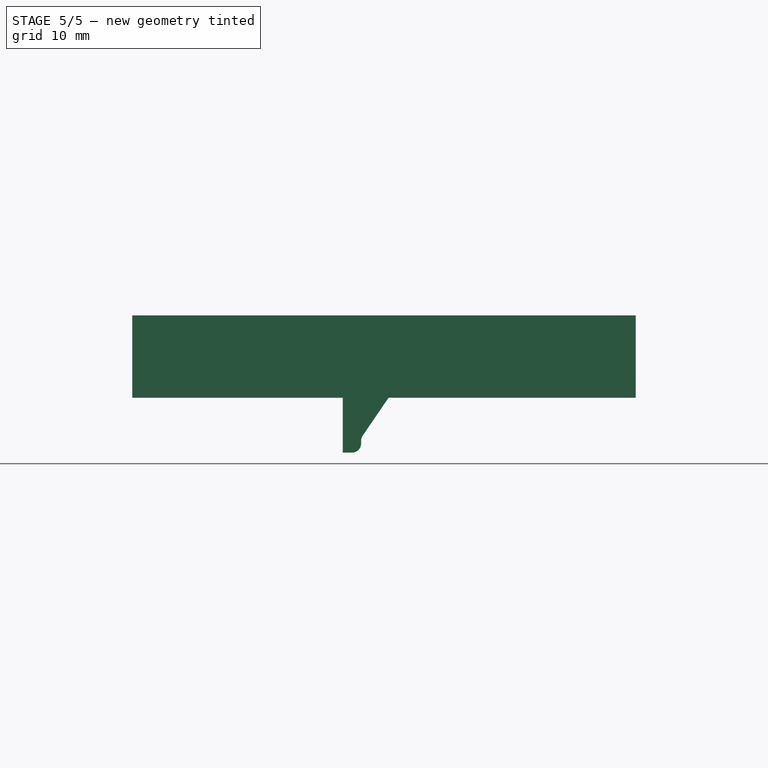
[diagram: stage 5 of 5 — front view after this stage's code; geometry added in this stage tinted green]
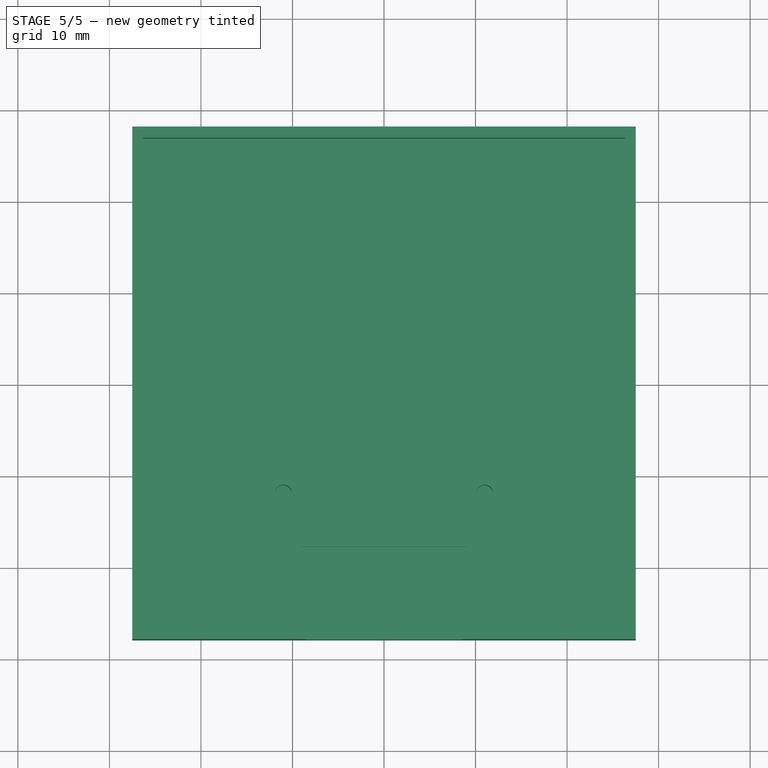
[diagram: stage 5 of 5 — top view after this stage's code; geometry added in this stage tinted green]
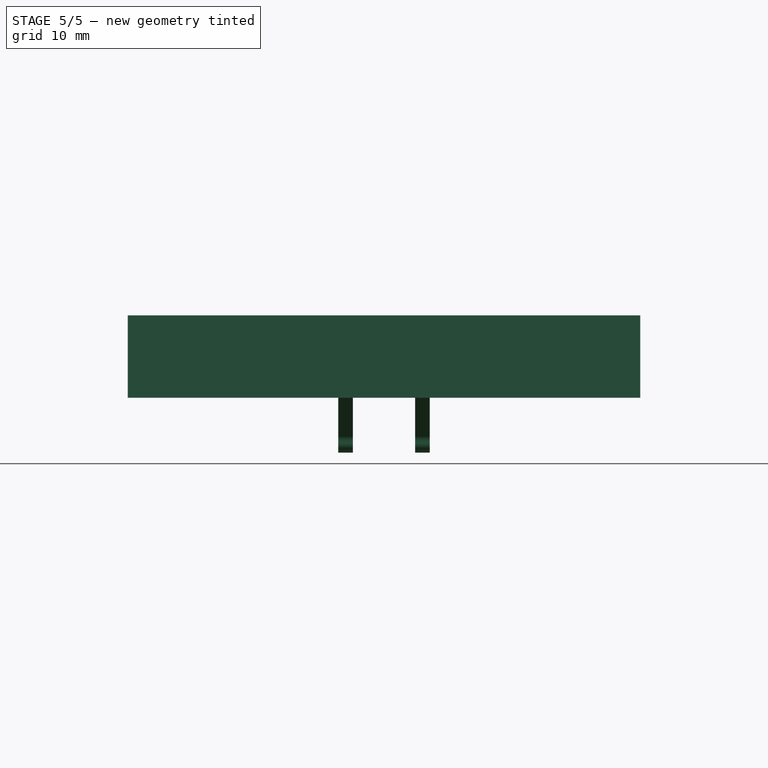
[diagram: stage 5 of 5 — right view after this stage's code; geometry added in this stage tinted green]
FEATURE [Sketcher::SketchObject] Sketch
  FullyConstrained = true
  MapMode = 2
  Support = -> [XY_Plane]
  expr: Constraints[8] = <<Params>>.box_width_external
  expr: Constraints[9] = <<Params>>.box_length_external
  sketch-geometry (4):
    g0: LineSegment StartX=-27.5 StartY=28 StartZ=0 EndX=27.5 EndY=28 EndZ=0
    g1: LineSegment StartX=27.5 StartY=28 StartZ=0 EndX=27.5 EndY=-28 EndZ=0
    g2: LineSegment StartX=27.5 StartY=-28 StartZ=0 EndX=-27.5 EndY=-28 EndZ=0
    g3: LineSegment StartX=-27.5 StartY=-28 StartZ=0 EndX=-27.5 EndY=28 EndZ=0
  constraints (10):
    c: Coincident(g0,g1)
    c: Coincident(g1,g2)
    c: Coincident(g2,g3)
    c: Coincident(g3,g0)
    c: Horizontal(g2)
    c: Vertical(g3)
    c: Symmetric(g0,g1,g-1)
    c: Symmetric(g0,g0,g-2)
    c: DistanceY(g2,g0) = 56
    c: DistanceX(g0,g0) = 55
FEATURE [Spreadsheet::Sheet] Spreadsheet  label="Params"
  cells = A2=box_length_external; B2(box_length_external)=55; A3=box_width_external; B3(box_width_external)=56; A4=box_wall_thickness; B4(box_wall_thickness)=1.2; A5=box_length_internal; B5(box_length_internal)==B2 - 2 * B4; A6=box_width_internal; B6(box_width_internal)==B3 - 2 * B4; A7=box_height; B7(box_height)=9; A8=box_depth; B8(box_depth)==B7 - B4; A9=side_window_length; B9(side_window_length)=17; A10=side_window_height; B10(side_window_height)=3.5; A11=side_window_y; B11(side_window_y)=11.1; A12=side_window_z; B12(side_window_z)=5; A13=monting_boss_hole; B13(monting_boss_hole)=1.8; A14=mounting_boss_pad; B14(mounting_boss_pad)=5; A15=mounting_boss_height; B15(mounting_boss_height)=2.5
FEATURE [Sketcher::SketchObject] Sketch004
  FullyConstrained = true
  MapMode = 5
  Support = -> [XY_Plane009]
  expr: Constraints[13] = <<Params001>>.tab_length
  expr: Constraints[14] = <<Params001>>.tab_width
  expr: Constraints[19] = <<Params001>>.tab_hole_diameter
  expr: Constraints[20] = <<Params001>>.tab_hole_x
  sketch-geometry (8):
    g0: LineSegment StartX=-4.5 StartY=5 StartZ=0 EndX=4.5 EndY=5 EndZ=0
    g1: LineSegment StartX=4.5 StartY=5 StartZ=0 EndX=4.5 EndY=1.25 EndZ=0
    g2: LineSegment StartX=4.5 StartY=-5 StartZ=0 EndX=-4.5 EndY=-5 EndZ=0
    g3: LineSegment StartX=-4.5 StartY=-5 StartZ=0 EndX=-4.5 EndY=5 EndZ=0
    g4: ArcOfCircle CenterX=-1e-16 CenterY=0 CenterZ=0 NormalX=0 NormalY=0 NormalZ=1 AngleXU=0 Radius=1.25 StartAngle=1.5708 EndAngle=4.71239
    g5: LineSegment StartX=-3e-16 StartY=1.25 StartZ=0 EndX=4.5 EndY=1.25 EndZ=0
    g6: LineSegment StartX=4.5 StartY=-1.25 StartZ=0 EndX=0 EndY=-1.25 EndZ=0
    g7: LineSegment StartX=4.5 StartY=-1.25 StartZ=0 EndX=4.5 EndY=-5 EndZ=0
  constraints (21):
    c: Coincident(g0,g1)
    c: Coincident(g7,g2)
    c: Coincident(g2,g3)
    c: Coincident(g3,g0)
    c: Horizontal(g2)
    c: Vertical(g1)
    c: Symmetric(g0,g0,g-2)
    c: Symmetric(g0,g2,g-1)
    c: PointOnObject(g4,g-1)
    c: Horizontal(g5)
    c: Horizontal(g6)
    c: Coincident(g1,g5)
    c: Coincident(g7,g6)
    c: DistanceX(g0,g0) = 9
    c: DistanceY(g2,g0) = 10
    c: Tangent(g4,g5) = 1.5708
    c: Tangent(g6,g4) = 1.5708
    c: Vertical(g7)
    c: Vertical(g6,g1)
    c: Diameter(g4) = 2.5
    c: DistanceX(g0,g4) = 4.5
FEATURE [PartDesign::Pad] Pad002
  Direction = (0,0,1)
  Length = 1.6
  Length2 = 10
  Profile = -> Sketch004
  ReferenceAxis = -> Sketch004 [N_Axis]
  Type = 0
  expr: Length = <<Params001>>.tab_thickness
FEATURE [PartDesign::Plane] DatumPlane002  label="PlaneRib"
  Length = 60
  MapMode = 5
  Placement = pos=(0,-5,0) rot=(1,0,0;1.5708rad)
  ResizeMode = 0
  Support = -> [Pad002]
  Width = 60
FEATURE [Sketcher::SketchObject] Sketch005
  ExternalGeometry = -> [Pad002]
  FullyConstrained = true
  MapMode = 5
  Placement = pos=(0,-5,0) rot=(1,0,0;1.5708rad)
  Support = -> [DatumPlane002]
  expr: Constraints[11] = <<Params001>>.tab_rib_height
  expr: Constraints[12] = <<Params001>>.tab_rib_length
  expr: Constraints[13] = <<Params001>>.tab_rib_insert
  expr: Constraints[6] = <<Params001>>.tab_height
  sketch-geometry (5):
    g0: LineSegment StartX=-4.5 StartY=0 StartZ=0 EndX=-4.5 EndY=-5.6 EndZ=0
    g1: LineSegment StartX=-4.5 StartY=-5.6 StartZ=0 EndX=-2.5 EndY=-5.6 EndZ=0
    g2: LineSegment StartX=0.5 StartY=0 StartZ=0 EndX=-4.5 EndY=0 EndZ=0
    g3: LineSegment StartX=-2.5 StartY=-5.6 StartZ=0 EndX=-2.5 EndY=-4 EndZ=0
    g4: LineSegment StartX=-2.5 StartY=-4 StartZ=0 EndX=0.5 EndY=0 EndZ=0
  constraints (14):
    c: Coincident(g0,g-3)
    c: Vertical(g0)
    c: Coincident(g1,g0)
    c: PointOnObject(g2,g-1)
    c: Coincident(g2,g0)
    c: Horizontal(g1)
    c: DistanceY(g0,g0) = 5.6
    c: Coincident(g3,g1)
    c: Vertical(g3)
    c: Coincident(g4,g3)
    c: Coincident(g4,g2)
    c: DistanceY(g3,g-1) = 4
    c: DistanceX(g0,g2) = 5
    c: DistanceX(g0,g1) = 2
FEATURE [PartDesign::Pad] Pad003  label="TabRib1"
  BaseFeature = -> Pad002
  Direction = (0,-1,2e-16)
  Length = 1.6
  Length2 = 10
  Profile = -> Sketch005
  ReferenceAxis = -> Sketch005 [N_Axis]
  Reversed = true
  Type = 0
  expr: Length = <<Params001>>.tab_rib_thickness
FEATURE [PartDesign::LinearPattern] LinearPattern  label="TabRib2"
  BaseFeature = -> Pad003
  Direction = -> Y_Axis009
  Length = 8.4
  Occurrences = 2
  Originals = -> [Pad003]
  expr: Length = <<Params001>>.tab_ribs_gap
FEATURE [PartDesign::Fillet] Fillet
  Base = -> LinearPattern [Edge51,Edge52]
  BaseFeature = -> LinearPattern
  Radius = 1
  SupportTransform = false
  UseAllEdges = false
FEATURE [PartDesign::Fillet] Fillet001
  Base = -> Fillet [Edge14,Edge52]
  BaseFeature = -> Fillet
  Radius = 1
  SupportTransform = false
  UseAllEdges = false
FEATURE [PartDesign::Fillet] Fillet002
  Base = -> Fillet001 [Edge19,Edge53]
  BaseFeature = -> Fillet001
  Radius = 1
  SupportTransform = false
  UseAllEdges = false
FEATURE [PartDesign::Fillet] Fillet003
  Base = -> Fillet002 [Edge38,Edge43]
  BaseFeature = -> Fillet002
  Radius = 1.5
  SupportTransform = false
  UseAllEdges = false
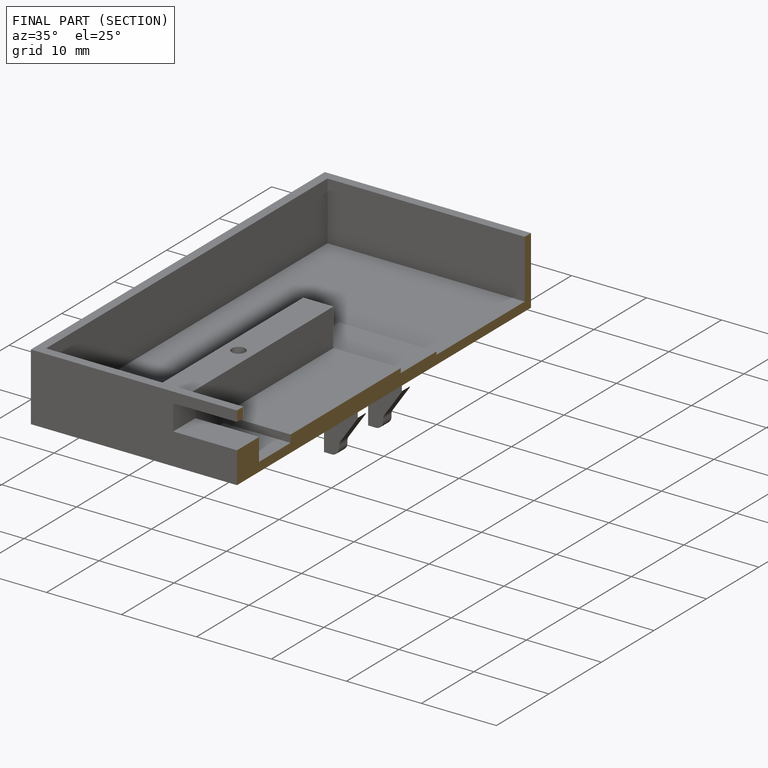
[diagram: finished part — half-section view (interior)]
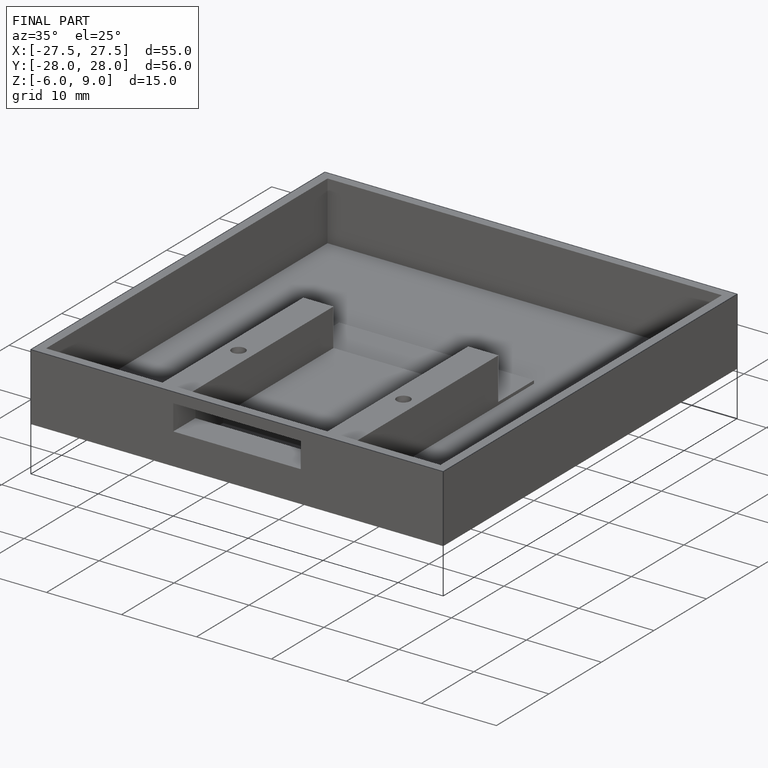
[diagram: finished part — iso view with bounding-box wireframe]
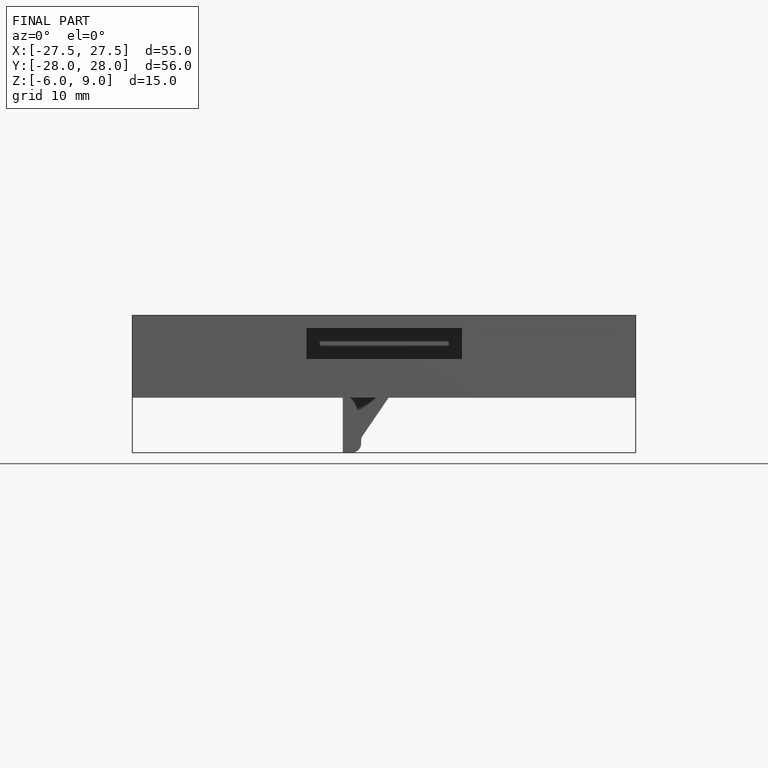
[diagram: finished part — front view with bounding-box wireframe]
